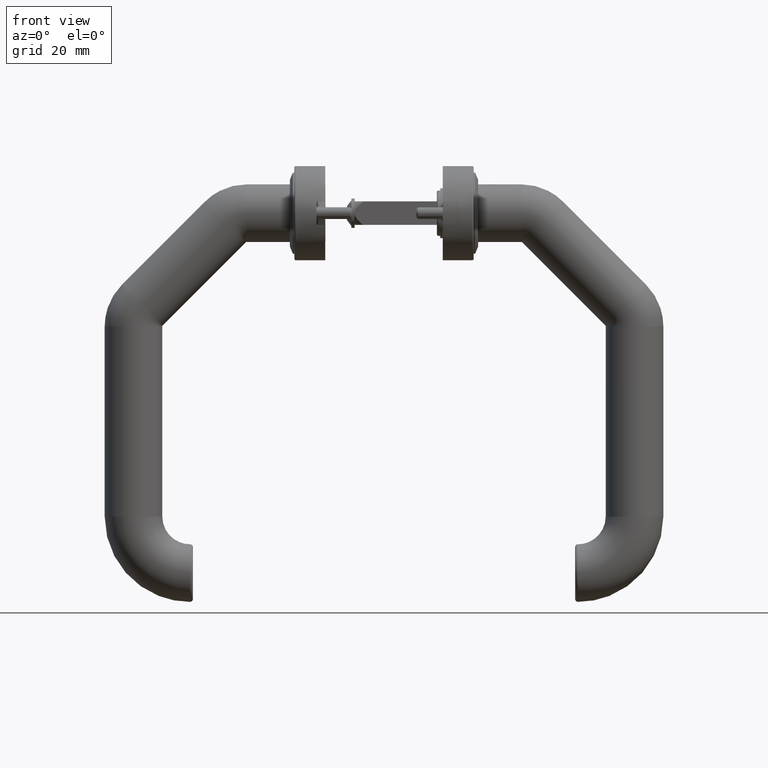
[diagram: clean part render]
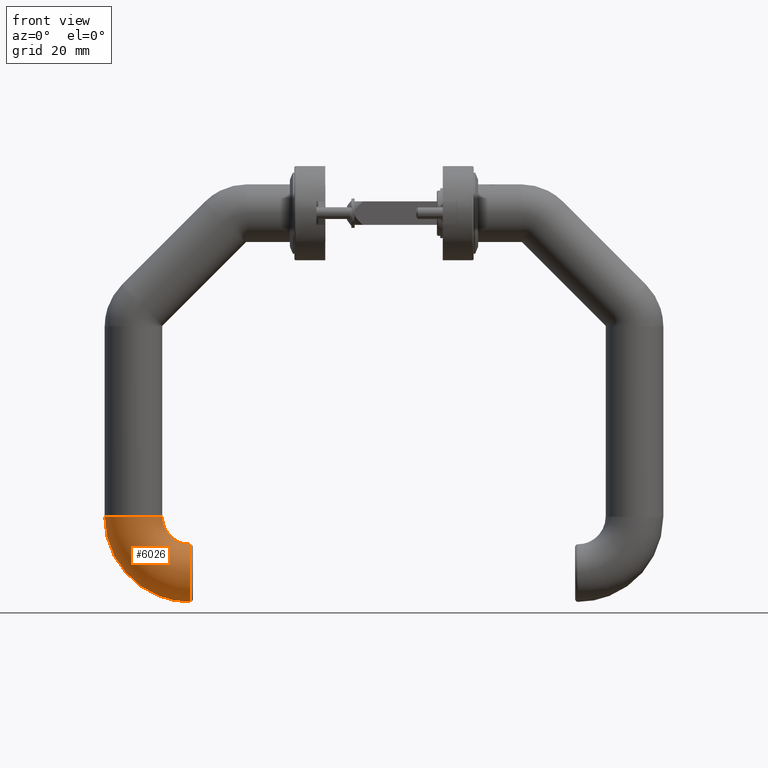
[diagram: same view with one face highlighted and labeled with its STEP entity id]
A machine part, front view. The second image highlights one B-rep face of the part: STEP entity #6026.
In plain terms, the highlighted toroidal blend (fillet) surface has major radius 19.2 mm and minor (blend) radius 9.8 mm.
Its self-contained STEP definition (entity closure, byte-faithful):
#2763 = AXIS2_PLACEMENT_3D ( 'NONE', #19567, #34076, #19869 ) ;
#3387 = CARTESIAN_POINT ( 'NONE',  ( -132.1999999999999886, 0.000000000000000000, -28.99999999999998579 ) ) ;
#5963 = CIRCLE ( 'NONE', #35218, 9.800000000000002487 ) ;
#6026 = ADVANCED_FACE ( 'NONE', ( #25677, #17212 ), #35289, .T. ) ;
#8801 = ORIENTED_EDGE ( 'NONE', *, *, #39788, .F. ) ;
#8958 = CARTESIAN_POINT ( 'NONE',  ( -142.0000000000000000, 0.000000000000000000, -28.99999999999998579 ) ) ;
#11012 = DIRECTION ( 'NONE',  ( 0.000000000000000000, 0.000000000000000000, 1.000000000000000000 ) ) ;
#11019 = VERTEX_POINT ( 'NONE', #42116 ) ;
#17212 = FACE_OUTER_BOUND ( 'NONE', #18163, .T. ) ;
#17969 = CARTESIAN_POINT ( 'NONE',  ( -112.9999999999999858, 0.000000000000000000, -9.799999999999993605 ) ) ;
#18163 = EDGE_LOOP ( 'NONE', ( #8801 ) ) ;
#19567 = CARTESIAN_POINT ( 'NONE',  ( -112.9999999999999858, 0.000000000000000000, -28.99999999999999289 ) ) ;
#19869 = DIRECTION ( 'NONE',  ( 0.000000000000000000, 0.000000000000000000, -1.000000000000000000 ) ) ;
#21610 = EDGE_LOOP ( 'NONE', ( #22952 ) ) ;
#22929 = CIRCLE ( 'NONE', #27480, 9.800000000000002487 ) ;
#22952 = ORIENTED_EDGE ( 'NONE', *, *, #46794, .T. ) ;
#25677 = FACE_OUTER_BOUND ( 'NONE', #21610, .T. ) ;
#27480 = AXIS2_PLACEMENT_3D ( 'NONE', #17969, #39792, #11012 ) ;
#28662 = DIRECTION ( 'NONE',  ( -1.000000000000000000, 0.000000000000000000, 0.000000000000000000 ) ) ;
#34076 = DIRECTION ( 'NONE',  ( -0.000000000000000000, -1.000000000000000000, 0.000000000000000000 ) ) ;
#35218 = AXIS2_PLACEMENT_3D ( 'NONE', #3387, #43191, #28662 ) ;
#35289 = TOROIDAL_SURFACE ( 'NONE', #2763, 19.20000000000000284, 9.800000000000002487 ) ;
#39788 = EDGE_CURVE ( 'NONE', #43792, #43792, #5963, .T. ) ;
#39792 = DIRECTION ( 'NONE',  ( -1.000000000000000000, 0.000000000000000000, -2.775557561562891351E-16 ) ) ;
#42116 = CARTESIAN_POINT ( 'NONE',  ( -112.9999999999999858, 0.000000000000000000, 1.040834085586084257E-14 ) ) ;
#43191 = DIRECTION ( 'NONE',  ( -5.721188726109845663E-18, 0.000000000000000000, -1.000000000000000000 ) ) ;
#43792 = VERTEX_POINT ( 'NONE', #8958 ) ;
#46794 = EDGE_CURVE ( 'NONE', #11019, #11019, #22929, .T. ) ;